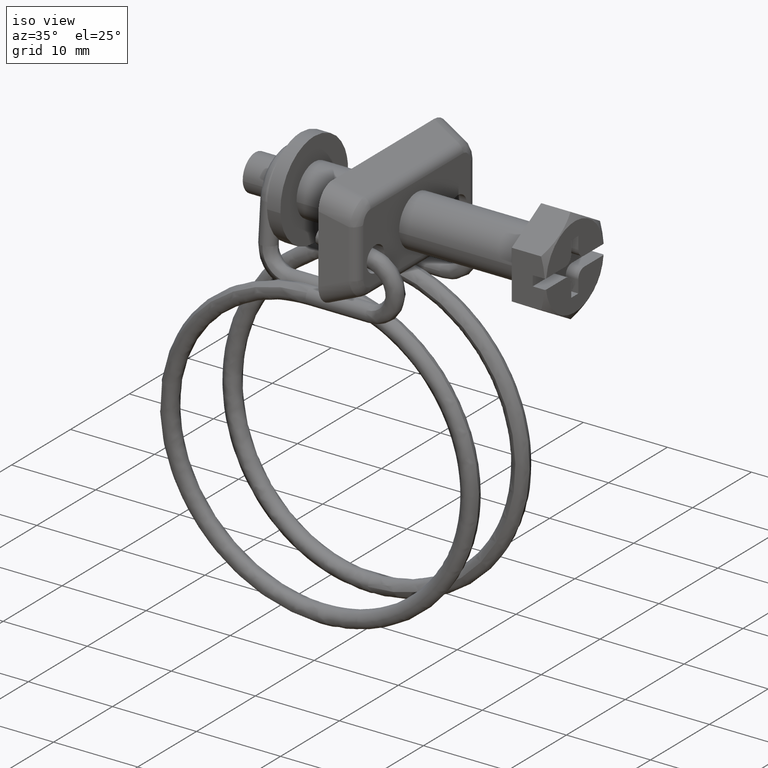
[diagram: clean part render]
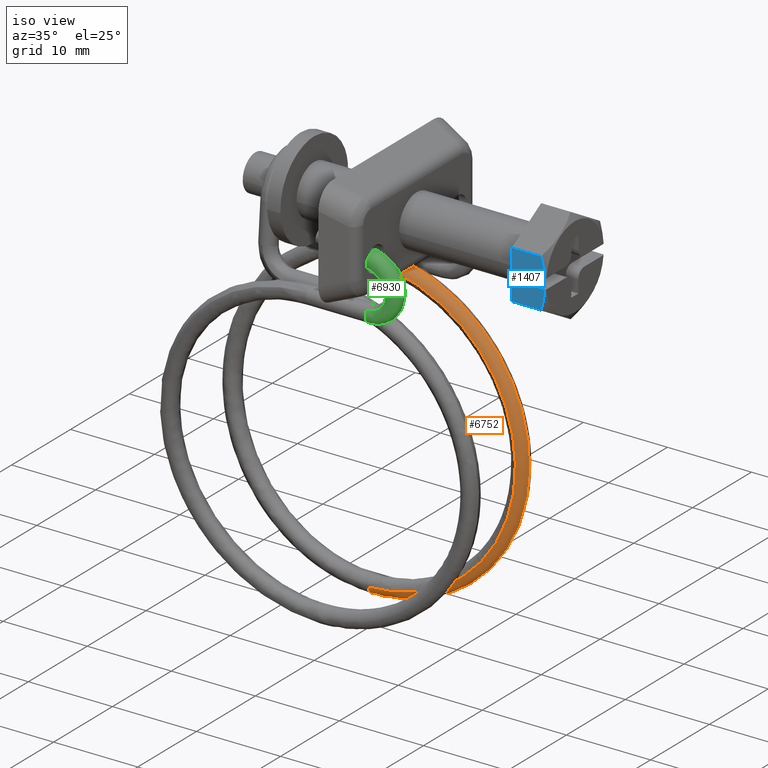
[diagram: same view with three faces highlighted in distinct colors, each labeled with its STEP entity id]
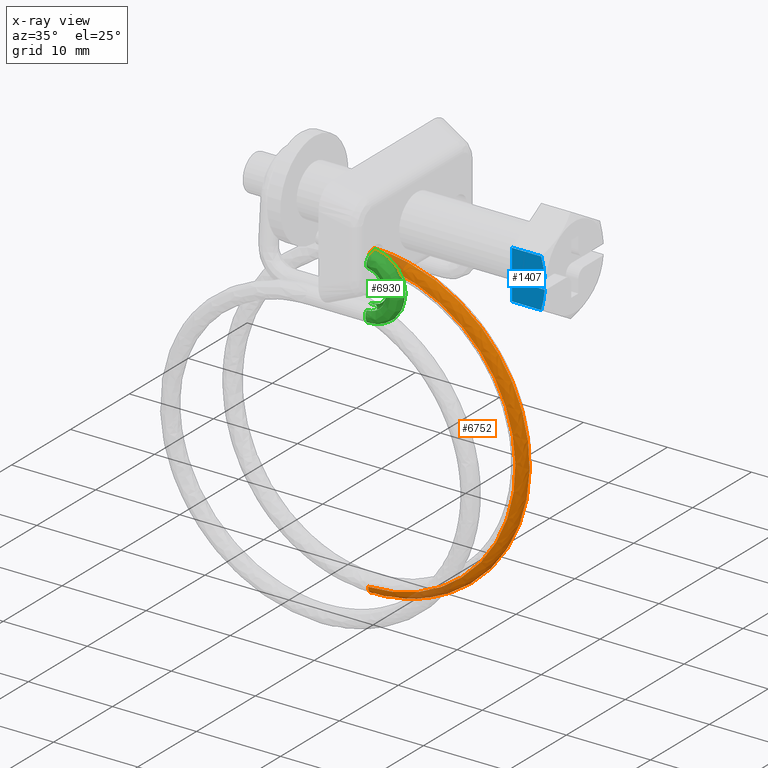
[diagram: x-ray of the same camera — body ghosted, the three highlighted faces saturated]
A machine part, iso view with three faces highlighted in distinct colors.
The next image is the same camera in x-ray (body ghosted, the three faces saturated) — at least one of them is partly hidden behind the body in this view.
Their STEP definitions:

[orange] entity #6752 — the highlighted face is a freeform B-spline surface patch.
#5493=CARTESIAN_POINT('',(-22.899997379453179,3.300317815066747,-7.824870731451295));
#5494=VERTEX_POINT('',#5493);
#5510=CARTESIAN_POINT('',(-22.900002933982648,4.325130255413341,-6.850316764466404));
#5511=VERTEX_POINT('',#5510);
#5512=CARTESIAN_POINT('',(-22.899997379453179,3.300317815066747,-7.824870731451295));
#5513=CARTESIAN_POINT('',(-22.899998110348751,3.306964750258441,-7.560455093532802));
#5514=CARTESIAN_POINT('',(-22.899999145351160,3.423510355203599,-7.299474493825690));
#5515=CARTESIAN_POINT('',(-22.900000184284391,3.619090430483517,-7.117635357371355));
#5516=CARTESIAN_POINT('',(-22.900001192719671,3.808929238325037,-6.941134122089506));
#5517=CARTESIAN_POINT('',(-22.900002196482081,4.067988789246369,-6.843853208072574));
#5518=CARTESIAN_POINT('',(-22.900002933982648,4.325130255413341,-6.850316764466404));
#5519=B_SPLINE_CURVE_WITH_KNOTS('',3,(#5512,#5513,#5514,#5515,#5516,#5517,#5518),.UNSPECIFIED.,.F.,.U.,(4,3,4),(0.0,0.793497512229485,1.563701846854389),.UNSPECIFIED.);
#5520=EDGE_CURVE('',#5494,#5511,#5519,.T.);
#6622=CARTESIAN_POINT('',(-22.899890940457698,4.325131802862888,-43.849677998842559));
#6623=VERTEX_POINT('',#6622);
#6624=CARTESIAN_POINT('',(-22.899890940457698,4.325131802862888,-43.849677998842559));
#6625=CARTESIAN_POINT('',(-4.516188428193275,4.325131802860684,-43.849569623004797));
#6626=CARTESIAN_POINT('',(-4.400680978665660,4.325131034001881,-25.466233538439941));
#6627=CARTESIAN_POINT('',(-4.283712143503053,4.325130255415576,-6.850313811980068));
#6628=CARTESIAN_POINT('',(-22.900002933982652,4.325130255413341,-6.850316764466404));
#6636=(BOUNDED_CURVE()B_SPLINE_CURVE(2,(#6624,#6625,#6626,#6627,#6628),.UNSPECIFIED.,.F.,.U.)B_SPLINE_CURVE_WITH_KNOTS((3,2,3),(-3.792507773493133,-2.0,-0.192000462142539),.UNSPECIFIED.)CURVE()GEOMETRIC_REPRESENTATION_ITEM()RATIONAL_B_SPLINE_CURVE((0.934809355846599,0.685816450809333,1.0,0.683101116692970,0.939155267952596))REPRESENTATION_ITEM(''));
#6637=EDGE_CURVE('',#6623,#5511,#6636,.T.);
#6663=CARTESIAN_POINT('',(-22.899999976841730,3.300325003407886,-42.875130913210207));
#6664=VERTEX_POINT('',#6663);
#6676=CARTESIAN_POINT('',(-22.899999976841734,3.300325003407886,-42.875130913210214));
#6677=CARTESIAN_POINT('',(-5.484639055501772,3.300325003407616,-42.875130890197006));
#6678=CARTESIAN_POINT('',(-5.375215838033415,3.300321431819741,-25.460113737706799));
#6679=CARTESIAN_POINT('',(-5.264408899137333,3.300317815067022,-7.824873373401323));
#6680=CARTESIAN_POINT('',(-22.899997379453179,3.300317815066747,-7.824870731451296));
#6688=(BOUNDED_CURVE()B_SPLINE_CURVE(2,(#6676,#6677,#6678,#6679,#6680),.UNSPECIFIED.,.F.,.U.)B_SPLINE_CURVE_WITH_KNOTS((3,2,3),(-3.792515019190120,-2.0,-0.192000843043612),.UNSPECIFIED.)CURVE()GEOMETRIC_REPRESENTATION_ITEM()RATIONAL_B_SPLINE_CURVE((0.934811368820172,0.685815180812723,1.0,0.683101183455778,0.939155160063986))REPRESENTATION_ITEM(''));
#6689=EDGE_CURVE('',#6664,#5494,#6688,.T.);
#6694=CARTESIAN_POINT('',(-25.522557849110598,4.339330253111255,-43.662491272337213));
#6695=CARTESIAN_POINT('',(-4.534255865263464,4.339330253111259,-46.668255932886396));
#6696=CARTESIAN_POINT('',(-4.401037885373745,4.339330253111258,-25.466234936537912));
#6697=CARTESIAN_POINT('',(-4.266214784775348,4.339330253111258,-4.008754406911026));
#6698=CARTESIAN_POINT('',(-25.509555637843516,4.339330253111256,-7.035653372541812));
#6699=CARTESIAN_POINT('',(-25.522570433841235,4.335798881114522,-43.662579147522692));
#6700=CARTESIAN_POINT('',(-4.534167734531473,4.335798881114524,-46.668358231676926));
#6701=CARTESIAN_POINT('',(-4.400949115375628,4.335798881114523,-25.466235494303586));
#6702=CARTESIAN_POINT('',(-4.266125367808699,4.335798881114525,-4.008651997791635));
#6703=CARTESIAN_POINT('',(-25.509568160181121,4.335798881114521,-7.035565488443539));
#6704=CARTESIAN_POINT('',(-25.522595732571283,4.328699863312645,-43.662755800536488));
#6705=CARTESIAN_POINT('',(-4.533990567799713,4.328699863312647,-46.668563880058237));
#6706=CARTESIAN_POINT('',(-4.400770663545159,4.328699863312647,-25.466236615564284));
#6707=CARTESIAN_POINT('',(-4.265945615395582,4.328699863312646,-4.008446127619270));
#6708=CARTESIAN_POINT('',(-25.509593333484222,4.328699863312645,-7.035388817512612));
#6709=CARTESIAN_POINT('',(-25.526171015961438,3.325447906157010,-43.687720871307121));
#6710=CARTESIAN_POINT('',(-4.508952897048200,3.325447906157009,-46.697626652799194));
#6711=CARTESIAN_POINT('',(-4.375551379247565,3.325447906157009,-25.466395075086076));
#6712=CARTESIAN_POINT('',(-4.240542529321286,3.325447906157008,-3.979352010783890));
#6713=CARTESIAN_POINT('',(-25.513150891206294,3.325447906157008,-7.010421214644954));
#6714=CARTESIAN_POINT('',(-25.383527453253379,3.300154090398354,-42.691686082069268));
#6715=CARTESIAN_POINT('',(-5.507884217496300,3.300154090398354,-45.538105296434473));
#6716=CARTESIAN_POINT('',(-5.381728559791635,3.300154090398355,-25.460072994213391));
#6717=CARTESIAN_POINT('',(-5.254052874093257,3.300154090398356,-5.140123906702971));
#6718=CARTESIAN_POINT('',(-25.371214531864151,3.300154090398354,-8.006557027298463));
#6719=CARTESIAN_POINT('',(-25.381849596593099,3.299856569806265,-42.679970140786928));
#6720=CARTESIAN_POINT('',(-5.519634229465673,3.299856569806267,-45.524466330934885));
#6721=CARTESIAN_POINT('',(-5.393563801787447,3.299856569806264,-25.459998630216166));
#6722=CARTESIAN_POINT('',(-5.265974373037562,3.299856569806266,-5.153777581777094));
#6723=CARTESIAN_POINT('',(-25.369544993741730,3.299856569806265,-8.018274156877054));
#6724=CARTESIAN_POINT('',(-25.381093447927515,3.299722488150772,-42.674690194307338));
#6725=CARTESIAN_POINT('',(-5.524929530358504,3.299722488150773,-45.518319747733493));
#6726=CARTESIAN_POINT('',(-5.398897512737756,3.299722488150771,-25.459965117080877));
#6727=CARTESIAN_POINT('',(-5.271346956841579,3.299722488150772,-5.159930794046058));
#6728=CARTESIAN_POINT('',(-25.368792593937087,3.299722488150771,-8.023554638878313));
#6736=(BOUNDED_SURFACE()B_SPLINE_SURFACE(2,2,((#6694,#6699,#6704,#6709,#6714,#6719,#6724),(#6695,#6700,#6705,#6710,#6715,#6720,#6725),(#6696,#6701,#6706,#6711,#6716,#6721,#6726),(#6697,#6702,#6707,#6712,#6717,#6722,#6727),(#6698,#6703,#6708,#6713,#6718,#6723,#6728)),.UNSPECIFIED.,.F.,.F.,.U.)B_SPLINE_SURFACE_WITH_KNOTS((3,2,3),(3,1,1,1,1,3),(0.0,33.642016532226073,67.548148392552363),(0.0,0.008363077713735,0.016737899161507,1.673592148653894,1.688898838907106,1.701621309872899),.UNSPECIFIED.)GEOMETRIC_REPRESENTATION_ITEM()RATIONAL_B_SPLINE_SURFACE(((0.996306099585201,0.994841828573241,0.991911230367386,0.700350307425629,0.993124914479617,0.998032472398770,1.000260019011797),(0.658164479722504,0.657197175428011,0.655261208515598,0.462654696084059,0.656062973929467,0.659304929695784,0.660776457430313),(1.005917740999959,1.004439343759216,1.001480473259236,0.707106781186548,1.002705866118892,1.007660768611125,1.009909804984465),(0.655434353048551,0.654471061221058,0.652543124877098,0.460735561938227,0.653341564494437,0.656570072330661,0.658035496033078),(1.001657710312500,1.000185574038591,0.997239234264153,0.704112205721390,0.998459437622746,1.003393356255354,1.005632868028842)))REPRESENTATION_ITEM('')SURFACE());
#6737=ORIENTED_EDGE('',*,*,#5520,.F.);
#6738=ORIENTED_EDGE('',*,*,#6689,.F.);
#6739=CARTESIAN_POINT('',(-22.899999976841730,3.300325003407886,-42.875130913210207));
#6740=CARTESIAN_POINT('',(-22.900128358343789,3.307730184982455,-43.161544057764758));
#6741=CARTESIAN_POINT('',(-22.900257681124131,3.440315293994021,-43.436478376485212));
#6742=CARTESIAN_POINT('',(-22.900384438951779,3.660930071291216,-43.619147971383910));
#6743=CARTESIAN_POINT('',(-22.900215336089609,3.852843306251362,-43.778052622668682));
#6744=CARTESIAN_POINT('',(-22.900061273746569,4.075450189350363,-43.849628279716050));
#6745=CARTESIAN_POINT('',(-22.899890940457698,4.325131802862888,-43.849677998842559));
#6746=B_SPLINE_CURVE_WITH_KNOTS('',3,(#6739,#6740,#6741,#6742,#6743,#6744,#6745),.UNSPECIFIED.,.F.,.U.,(4,3,4),(0.0,0.859526662254463,1.607230731607541),.UNSPECIFIED.);
#6747=EDGE_CURVE('',#6664,#6623,#6746,.T.);
#6748=ORIENTED_EDGE('',*,*,#6747,.T.);
#6749=ORIENTED_EDGE('',*,*,#6637,.T.);
#6750=EDGE_LOOP('',(#6737,#6738,#6748,#6749));
#6751=FACE_OUTER_BOUND('',#6750,.T.);
#6752=ADVANCED_FACE('',(#6751),#6736,.T.);

[blue] entity #1407 — the highlighted face is a freeform B-spline surface patch.
#667=CARTESIAN_POINT('',(2.500000000000000,-5.000000000000110,0.600000000000108));
#668=VERTEX_POINT('',#667);
#674=CARTESIAN_POINT('',(2.500000000000000,-5.000000000000110,-0.600000000000108));
#675=VERTEX_POINT('',#674);
#676=CARTESIAN_POINT('',(2.500000000000000,-5.000000000000110,-0.600000000000108));
#677=CARTESIAN_POINT('',(2.500000000000000,-5.000000000000110,0.600000000000108));
#678=QUASI_UNIFORM_CURVE('',1,(#676,#677),.UNSPECIFIED.,.F.,.U.);
#679=EDGE_CURVE('',#675,#668,#678,.T.);
#1060=CARTESIAN_POINT('',(3.921553382859560,-5.000000000000110,-0.600000000000108));
#1061=VERTEX_POINT('',#1060);
#1062=CARTESIAN_POINT('',(2.500000000000000,-5.000000000000110,-0.600000000000108));
#1063=CARTESIAN_POINT('',(3.921553382859560,-5.000000000000110,-0.600000000000108));
#1064=QUASI_UNIFORM_CURVE('',1,(#1062,#1063),.UNSPECIFIED.,.F.,.U.);
#1065=EDGE_CURVE('',#675,#1061,#1064,.T.);
#1091=CARTESIAN_POINT('',(3.921553382871895,-4.999999999978600,0.600000000000108));
#1092=VERTEX_POINT('',#1091);
#1093=CARTESIAN_POINT('',(3.921553382871895,-4.999999999978600,0.600000000000108));
#1094=CARTESIAN_POINT('',(2.500000000000000,-5.000000000000110,0.600000000000108));
#1095=QUASI_UNIFORM_CURVE('',1,(#1093,#1094),.UNSPECIFIED.,.F.,.U.);
#1096=EDGE_CURVE('',#1092,#668,#1095,.T.);
#1242=CARTESIAN_POINT('',(3.495681525698620,-5.000000000000110,-2.886751999999890));
#1243=VERTEX_POINT('',#1242);
#1244=CARTESIAN_POINT('',(3.921553382859560,-5.000000000000110,-0.600000000000108));
#1245=CARTESIAN_POINT('',(3.918597977682698,-5.000000000000110,-0.642986714361419));
#1246=CARTESIAN_POINT('',(3.915330836117613,-5.000000000000110,-0.685948138292096));
#1247=CARTESIAN_POINT('',(3.891560659500435,-5.000000000000110,-0.971354513281901));
#1248=CARTESIAN_POINT('',(3.861532423447545,-5.000000000000110,-1.213026707472463));
#1249=CARTESIAN_POINT('',(3.783840757566470,-5.000000000000110,-1.694940394588888));
#1250=CARTESIAN_POINT('',(3.736194218412856,-5.000000000000110,-1.935183257814947));
#1251=CARTESIAN_POINT('',(3.625826569846141,-5.000000000000109,-2.414446020288906));
#1252=CARTESIAN_POINT('',(3.563506953373525,-5.000000000000110,-2.651799015420626));
#1253=CARTESIAN_POINT('',(3.495681525698620,-5.000000000000110,-2.886751999999890));
#1254=B_SPLINE_CURVE_WITH_KNOTS('',3,(#1244,#1245,#1246,#1247,#1248,#1249,#1250,#1251,#1252,#1253),.UNSPECIFIED.,.F.,.U.,(4,2,2,2,4),(0.0,0.022134886933876,0.147134886933876,0.272134886933876,0.397134886933876),.UNSPECIFIED.);
#1255=EDGE_CURVE('',#1061,#1243,#1254,.T.);
#1321=CARTESIAN_POINT('',(0.0,-5.000000000000110,2.886751000000115));
#1322=VERTEX_POINT('',#1321);
#1351=CARTESIAN_POINT('',(0.0,-5.000000000000110,-2.886751999999890));
#1352=VERTEX_POINT('',#1351);
#1358=CARTESIAN_POINT('',(0.0,-5.000000000000110,-2.886751999999890));
#1359=CARTESIAN_POINT('',(0.0,-5.000000000000110,2.886751000000115));
#1360=QUASI_UNIFORM_CURVE('',1,(#1358,#1359),.UNSPECIFIED.,.F.,.U.);
#1361=EDGE_CURVE('',#1352,#1322,#1360,.T.);
#1372=CARTESIAN_POINT('',(-0.195881583873720,-5.000000000000110,3.175137388835422));
#1373=CARTESIAN_POINT('',(-0.195881583873720,-5.000000000000110,-3.175138182358640));
#1374=CARTESIAN_POINT('',(4.117435071929873,-5.000000000000110,3.175137388835422));
#1375=CARTESIAN_POINT('',(4.117435071929873,-5.000000000000110,-3.175138182358640));
#1376=B_SPLINE_SURFACE_WITH_KNOTS('',1,1,((#1372,#1374),(#1373,#1375)),.UNSPECIFIED.,.F.,.F.,.U.,(2,2),(2,2),(0.0,6.350275571194063),(0.0,4.313316655803593),.UNSPECIFIED.);
#1377=ORIENTED_EDGE('',*,*,#1096,.F.);
#1378=CARTESIAN_POINT('',(3.495681814373700,-5.000000000000110,2.886751000000115));
#1379=VERTEX_POINT('',#1378);
#1380=CARTESIAN_POINT('',(3.495681814373700,-5.000000000000110,2.886751000000115));
#1381=CARTESIAN_POINT('',(3.630398860770083,-4.999999999995639,2.420080120623296));
#1382=CARTESIAN_POINT('',(3.742562202042314,-4.999999999991151,1.947388155845735));
#1383=CARTESIAN_POINT('',(3.859920259265320,-4.999999999984383,1.224765092697002));
#1384=CARTESIAN_POINT('',(3.890514917825811,-4.999999999982122,0.981597229773779));
#1385=CARTESIAN_POINT('',(3.914983570445982,-4.999999999979434,0.690513594369012));
#1386=CARTESIAN_POINT('',(3.918443051141774,-4.999999999979017,0.645242634383172));
#1387=CARTESIAN_POINT('',(3.921553382871895,-4.999999999978600,0.600000000000108));
#1388=B_SPLINE_CURVE_WITH_KNOTS('',3,(#1380,#1381,#1382,#1383,#1384,#1385,#1386,#1387),.UNSPECIFIED.,.F.,.U.,(4,2,2,4),(0.601961911219362,0.851961911219362,0.976961911219362,1.0),.UNSPECIFIED.);
#1389=EDGE_CURVE('',#1379,#1092,#1388,.T.);
#1390=ORIENTED_EDGE('',*,*,#1389,.F.);
#1391=CARTESIAN_POINT('',(3.495681814373700,-5.000000000000110,2.886751000000115));
#1392=CARTESIAN_POINT('',(0.0,-5.000000000000110,2.886751000000115));
#1393=QUASI_UNIFORM_CURVE('',1,(#1391,#1392),.UNSPECIFIED.,.F.,.U.);
#1394=EDGE_CURVE('',#1379,#1322,#1393,.T.);
#1395=ORIENTED_EDGE('',*,*,#1394,.T.);
#1396=ORIENTED_EDGE('',*,*,#1361,.F.);
#1397=CARTESIAN_POINT('',(3.495681525698620,-5.000000000000110,-2.886751999999890));
#1398=CARTESIAN_POINT('',(0.0,-5.000000000000110,-2.886751999999890));
#1399=QUASI_UNIFORM_CURVE('',1,(#1397,#1398),.UNSPECIFIED.,.F.,.U.);
#1400=EDGE_CURVE('',#1243,#1352,#1399,.T.);
#1401=ORIENTED_EDGE('',*,*,#1400,.F.);
#1402=ORIENTED_EDGE('',*,*,#1255,.F.);
#1403=ORIENTED_EDGE('',*,*,#1065,.F.);
#1404=ORIENTED_EDGE('',*,*,#679,.T.);
#1405=EDGE_LOOP('',(#1377,#1390,#1395,#1396,#1401,#1402,#1403,#1404));
#1406=FACE_OUTER_BOUND('',#1405,.T.);
#1407=ADVANCED_FACE('',(#1406),#1376,.T.);

[green] entity #6930 — the highlighted face is a freeform B-spline surface patch.
#4581=CARTESIAN_POINT('',(-15.810165851317199,-6.067982360080608,-6.880227583447105));
#4582=VERTEX_POINT('',#4581);
#4583=CARTESIAN_POINT('',(-15.810165851317240,-6.424481486962346,-6.856575396511321));
#4584=VERTEX_POINT('',#4583);
#4585=CARTESIAN_POINT('',(-15.810165851317199,-6.067982360080608,-6.880227583447105));
#4586=CARTESIAN_POINT('',(-15.810165851317210,-6.184181279829681,-6.851286316830446));
#4587=CARTESIAN_POINT('',(-15.810165851317221,-6.305455613998436,-6.842709107354715));
#4588=CARTESIAN_POINT('',(-15.810165851317240,-6.424481486962346,-6.856575396511321));
#4589=B_SPLINE_CURVE_WITH_KNOTS('',3,(#4585,#4586,#4587,#4588),.UNSPECIFIED.,.F.,.U.,(4,4),(0.942811837304476,1.0),.UNSPECIFIED.);
#4590=EDGE_CURVE('',#4582,#4584,#4589,.T.);
#4643=CARTESIAN_POINT('',(-15.810165851628120,-5.311479364745564,-7.796383682759801));
#4644=VERTEX_POINT('',#4643);
#4650=CARTESIAN_POINT('',(-15.810165851317191,-6.195522397931227,-8.843426605598774));
#4651=VERTEX_POINT('',#4650);
#4652=CARTESIAN_POINT('',(-15.810165851317191,-6.195522397931227,-8.843426605598774));
#4653=CARTESIAN_POINT('',(-15.810165851360461,-5.935438773348567,-8.813455653195517));
#4654=CARTESIAN_POINT('',(-15.810165851420210,-5.689292420303680,-8.676604595804742));
#4655=CARTESIAN_POINT('',(-15.810165851534340,-5.376516457382770,-8.282370011074230));
#4656=CARTESIAN_POINT('',(-15.810165851588151,-5.299114062947120,-8.037340927850183));
#4657=CARTESIAN_POINT('',(-15.810165851628120,-5.311479364745564,-7.796383682759801));
#4658=B_SPLINE_CURVE_WITH_KNOTS('',3,(#4652,#4653,#4654,#4655,#4656,#4657),.UNSPECIFIED.,.F.,.U.,(4,2,4),(0.500000000000000,0.625000000000000,0.740274519047409),.UNSPECIFIED.);
#4659=EDGE_CURVE('',#4651,#4644,#4658,.T.);
#4661=CARTESIAN_POINT('',(-15.810165851317240,-7.112523029409116,-7.253414382152814));
#4662=VERTEX_POINT('',#4661);
#4663=CARTESIAN_POINT('',(-15.810165851317240,-7.112523029409116,-7.253414382152814));
#4664=CARTESIAN_POINT('',(-15.810165851317191,-7.262130495784210,-7.455235911362829));
#4665=CARTESIAN_POINT('',(-15.810165851317191,-7.332199389705785,-7.714805511467455));
#4666=CARTESIAN_POINT('',(-15.810165851317191,-7.273456873465819,-8.224558760006779));
#4667=CARTESIAN_POINT('',(-15.810165851317191,-7.136606199616760,-8.470697642234583));
#4668=CARTESIAN_POINT('',(-15.810165851317191,-6.726415125526605,-8.796118847051970));
#4669=CARTESIAN_POINT('',(-15.810165851317191,-6.455600613301034,-8.873397280300306));
#4670=CARTESIAN_POINT('',(-15.810165851317191,-6.195522397931227,-8.843426605598774));
#4671=B_SPLINE_CURVE_WITH_KNOTS('',3,(#4663,#4664,#4665,#4666,#4667,#4668,#4669,#4670),.UNSPECIFIED.,.F.,.U.,(4,2,2,4),(0.130000025754511,0.250000000000000,0.375000000000000,0.500000000000000),.UNSPECIFIED.);
#4672=EDGE_CURVE('',#4662,#4651,#4671,.T.);
#4700=CARTESIAN_POINT('',(-15.810165851628120,-5.311479364745564,-7.796383682759801));
#4701=CARTESIAN_POINT('',(-15.810165851623839,-5.312521942232791,-7.776048204640260));
#4702=CARTESIAN_POINT('',(-15.810165851619461,-5.314203444835885,-7.755741557953407));
#4703=CARTESIAN_POINT('',(-15.810165851557510,-5.346490308971480,-7.475335274932522));
#4704=CARTESIAN_POINT('',(-15.810165851485030,-5.483322678026756,-7.229087598772470));
#4705=CARTESIAN_POINT('',(-15.810165851381630,-5.799655347085825,-6.977952176199461));
#4706=CARTESIAN_POINT('',(-15.810165851347120,-5.930250999910936,-6.914773464817992));
#4707=CARTESIAN_POINT('',(-15.810165851317199,-6.067982360080608,-6.880227583447105));
#4708=B_SPLINE_CURVE_WITH_KNOTS('',3,(#4700,#4701,#4702,#4703,#4704,#4705,#4706,#4707),.UNSPECIFIED.,.F.,.U.,(4,2,2,4),(0.740274519047409,0.750000000000000,0.875000000000000,0.942811837304476),.UNSPECIFIED.);
#4709=EDGE_CURVE('',#4644,#4582,#4708,.T.);
#5876=CARTESIAN_POINT('',(-15.436266066383389,-6.473608071934329,-2.589945108683043));
#5877=VERTEX_POINT('',#5876);
#5878=CARTESIAN_POINT('',(-15.446223969584610,-6.819439928313093,-2.679120480279817));
#5879=VERTEX_POINT('',#5878);
#5880=CARTESIAN_POINT('',(-15.436266066383389,-6.473608071934329,-2.589945108683043));
#5881=CARTESIAN_POINT('',(-15.443198312161201,-6.582381352362656,-2.639544567077028));
#5882=CARTESIAN_POINT('',(-15.446678064773341,-6.699928093713684,-2.670394052144686));
#5883=CARTESIAN_POINT('',(-15.446223969584610,-6.819439928313093,-2.679120480279817));
#5884=B_SPLINE_CURVE_WITH_KNOTS('',3,(#5880,#5881,#5882,#5883),.UNSPECIFIED.,.F.,.U.,(4,4),(0.942811831421926,1.0),.UNSPECIFIED.);
#5885=EDGE_CURVE('',#5877,#5879,#5884,.T.);
#5887=CARTESIAN_POINT('',(-15.388617693296540,-7.569187098825201,-2.423302125063336));
#5888=VERTEX_POINT('',#5887);
#5898=CARTESIAN_POINT('',(-15.097500008768611,-6.964019536060446,-0.715071515469158));
#5899=VERTEX_POINT('',#5898);
#5900=CARTESIAN_POINT('',(-15.388617693296540,-7.569187098825201,-2.423302125063336));
#5901=CARTESIAN_POINT('',(-15.356032968946041,-7.753698544545885,-2.255945953242370));
#5902=CARTESIAN_POINT('',(-15.312115483856751,-7.870809911009847,-2.017949707833397));
#5903=CARTESIAN_POINT('',(-15.222645451731340,-7.907903739288756,-1.514046717121525));
#5904=CARTESIAN_POINT('',(-15.177663208406530,-7.819236057281504,-1.250556496752302));
#5905=CARTESIAN_POINT('',(-15.114428609698971,-7.476779092533119,-0.859557403876561));
#5906=CARTESIAN_POINT('',(-15.096565642396870,-7.225098602493065,-0.734456238375776));
#5907=CARTESIAN_POINT('',(-15.097500008768611,-6.964019536060450,-0.715071515469158));
#5908=B_SPLINE_CURVE_WITH_KNOTS('',3,(#5900,#5901,#5902,#5903,#5904,#5905,#5906,#5907),.UNSPECIFIED.,.F.,.U.,(4,2,2,4),(0.130000023343268,0.250000000000000,0.375000000000000,0.500000000000000),.UNSPECIFIED.);
#5909=EDGE_CURVE('',#5888,#5899,#5908,.T.);
#5911=CARTESIAN_POINT('',(-15.264780604367999,-5.900792921860433,-1.563244412250211));
#5912=VERTEX_POINT('',#5911);
#5913=CARTESIAN_POINT('',(-15.097500008768611,-6.964019536060446,-0.715071515469158));
#5914=CARTESIAN_POINT('',(-15.098434334561849,-6.702935103874649,-0.695686055123983));
#5915=CARTESIAN_POINT('',(-15.118154471219700,-6.435665412688923,-0.782255492076043));
#5916=CARTESIAN_POINT('',(-15.181468991492050,-6.055069742069668,-1.105346664239391));
#5917=CARTESIAN_POINT('',(-15.222741498102600,-5.933458062813233,-1.327917000231272));
#5918=CARTESIAN_POINT('',(-15.264780604367999,-5.900792921860433,-1.563244412250211));
#5919=B_SPLINE_CURVE_WITH_KNOTS('',3,(#5913,#5914,#5915,#5916,#5917,#5918),.UNSPECIFIED.,.F.,.U.,(4,2,4),(0.500000000000000,0.625000000000000,0.740274513218299),.UNSPECIFIED.);
#5920=EDGE_CURVE('',#5899,#5912,#5919,.T.);
#5998=CARTESIAN_POINT('',(-15.264780604367999,-5.900792921860433,-1.563244412250211));
#5999=CARTESIAN_POINT('',(-15.268328461908020,-5.898035190980414,-1.583104592566339));
#6000=CARTESIAN_POINT('',(-15.271881801808309,-5.895910513511723,-1.603055717090305));
#6001=CARTESIAN_POINT('',(-15.321097259461180,-5.875479955448496,-1.880238983285426));
#6002=CARTESIAN_POINT('',(-15.366098091613299,-5.964109421145508,-2.143831013018982));
#6003=CARTESIAN_POINT('',(-15.414894121400470,-6.228173928572121,-2.445533236102255));
#6004=CARTESIAN_POINT('',(-15.428007282171549,-6.344723329571140,-2.530920895840112));
#6005=CARTESIAN_POINT('',(-15.436266066383389,-6.473608071934329,-2.589945108683043));
#6006=B_SPLINE_CURVE_WITH_KNOTS('',3,(#5998,#5999,#6000,#6001,#6002,#6003,#6004,#6005),.UNSPECIFIED.,.F.,.U.,(4,2,2,4),(0.740274513218299,0.750000000000000,0.875000000000000,0.942811831421926),.UNSPECIFIED.);
#6007=EDGE_CURVE('',#5912,#5877,#6006,.T.);
#6753=CARTESIAN_POINT('',(-15.845985592693619,-7.096251271049232,-7.231466546191244));
#6754=CARTESIAN_POINT('',(-15.848810995364550,-7.256908417307503,-7.436413332619529));
#6755=CARTESIAN_POINT('',(-15.852713940640839,-7.333242530449343,-7.705756858045422));
#6756=CARTESIAN_POINT('',(-15.860519553370160,-7.273709005814578,-8.224362647601303));
#6757=CARTESIAN_POINT('',(-15.868254694651061,-6.998492022395890,-8.717843708282466));
#6758=CARTESIAN_POINT('',(-15.871338487662349,-6.455347417358349,-8.873603300117235));
#6759=CARTESIAN_POINT('',(-15.871174891027859,-5.935443580309280,-8.813461519829012));
#6760=CARTESIAN_POINT('',(-15.869483741866320,-5.689304724053675,-8.676610615554662));
#6761=CARTESIAN_POINT('',(-15.863839100600529,-5.363846692028395,-8.266739107788519));
#6762=CARTESIAN_POINT('',(-15.855963123938690,-5.209511404793357,-7.723187262830220));
#6763=CARTESIAN_POINT('',(-15.848219090956791,-5.483434319371185,-7.228986803311528));
#6764=CARTESIAN_POINT('',(-15.842706723029440,-5.900725929535077,-6.898222524243868));
#6765=CARTESIAN_POINT('',(-15.841164222198090,-6.183329900815183,-6.821345195658556));
#6766=CARTESIAN_POINT('',(-15.841357702254800,-6.451633473575157,-6.859706369167520));
#6767=CARTESIAN_POINT('',(-15.236893885580010,-7.095390322822322,-7.240572736247706));
#6768=CARTESIAN_POINT('',(-15.191670373776820,-7.255979620156817,-7.446237156565076));
#6769=CARTESIAN_POINT('',(-15.129199670728450,-7.332220045266125,-7.716571614635788));
#6770=CARTESIAN_POINT('',(-15.004262711851551,-7.272499224614623,-8.237158423016824));
#6771=CARTESIAN_POINT('',(-14.880453722251071,-6.997096709644576,-8.732601840084302));
#6772=CARTESIAN_POINT('',(-14.831094404598939,-6.453878171393047,-8.889143419273941));
#6773=CARTESIAN_POINT('',(-14.833712939047100,-5.933978255396688,-8.828960166236044));
#6774=CARTESIAN_POINT('',(-14.860781542043210,-5.687879949421490,-8.691680363979152));
#6775=CARTESIAN_POINT('',(-14.951129902285571,-5.362557286621739,-8.280377063783387));
#6776=CARTESIAN_POINT('',(-15.077193108850480,-5.208410921267927,-7.734827003161840));
#6777=CARTESIAN_POINT('',(-15.201144420146010,-5.482519732319778,-7.238660327910919));
#6778=CARTESIAN_POINT('',(-15.289375608814391,-5.899943722729190,-6.906495871146130));
#6779=CARTESIAN_POINT('',(-15.314064940881099,-6.182584750454453,-6.829226598855084));
#6780=CARTESIAN_POINT('',(-15.310968091095390,-6.450883675043432,-6.867636935781494));
#6781=CARTESIAN_POINT('',(-14.630393866970071,-7.117298743874993,-7.008848518707686));
#6782=CARTESIAN_POINT('',(-14.537450221187759,-7.279619625704943,-7.196198060391691));
#6783=CARTESIAN_POINT('',(-14.409060034586920,-7.358251986411295,-7.441233140684961));
#6784=CARTESIAN_POINT('',(-14.152288791474639,-7.303314797472132,-7.911223726289265));
#6785=CARTESIAN_POINT('',(-13.897835748189239,-7.032652656802638,-8.356528451773258));
#6786=CARTESIAN_POINT('',(-13.796392151999070,-6.491323947083319,-8.493081413152112));
#6787=CARTESIAN_POINT('',(-13.801773781474591,-5.971323775889220,-8.433958554104622));
#6788=CARTESIAN_POINT('',(-13.857405352709200,-5.724189084670091,-8.307640544522954));
#6789=CARTESIAN_POINT('',(-14.043089894977291,-5.395407200961221,-7.932925243380629));
#6790=CARTESIAN_POINT('',(-14.302175818003100,-5.236434140673605,-7.438426883121805));
#6791=CARTESIAN_POINT('',(-14.556921341365101,-5.505796985226239,-6.992458047462238));
#6792=CARTESIAN_POINT('',(-14.738254634119331,-5.919842643368246,-6.696026034367875));
#6793=CARTESIAN_POINT('',(-14.788996302602870,-6.201538315408170,-6.628755739680303));
#6794=CARTESIAN_POINT('',(-14.782631637714820,-6.469955818597057,-6.665911876957214));
#6795=CARTESIAN_POINT('',(-13.742647373546230,-7.194282898283949,-6.194591116925627));
#6796=CARTESIAN_POINT('',(-13.580269823369330,-7.362624992771310,-6.318254605138641));
#6797=CARTESIAN_POINT('',(-13.355965259114150,-7.449574916340323,-6.475315255127514));
#6798=CARTESIAN_POINT('',(-12.907372081370990,-7.411272261651076,-6.769363236160562));
#6799=CARTESIAN_POINT('',(-12.462828923464381,-7.157094474183249,-7.040313814210745));
#6800=CARTESIAN_POINT('',(-12.285601502567321,-6.622337633471461,-7.107356458492108));
#6801=CARTESIAN_POINT('',(-12.295003498828761,-6.101988821602116,-7.051921153769873));
#6802=CARTESIAN_POINT('',(-12.392194847129479,-5.851250123695968,-6.963722535674243));
#6803=CARTESIAN_POINT('',(-12.716595733552900,-5.510438949478228,-6.716240415316292));
#6804=CARTESIAN_POINT('',(-13.169232781652630,-5.334681401926968,-6.399270704895780));
#6805=CARTESIAN_POINT('',(-13.614286917993880,-5.587540945400019,-6.127856427366073));
#6806=CARTESIAN_POINT('',(-13.931085937392490,-5.989839202110743,-5.955676068926711));
#6807=CARTESIAN_POINT('',(-14.019734362476720,-6.268247652372983,-5.923174548207718));
#6808=CARTESIAN_POINT('',(-14.008614950455980,-6.537077480691507,-5.955969544012551));
#6809=CARTESIAN_POINT('',(-13.460866444239009,-7.248346349914481,-5.622764797670496));
#6810=CARTESIAN_POINT('',(-13.276671792741190,-7.420890058373412,-5.701988033187845));
#6811=CARTESIAN_POINT('',(-13.022229593088090,-7.513643993581433,-5.797659953598920));
#6812=CARTESIAN_POINT('',(-12.513363287689630,-7.486948949432618,-5.968934840963503));
#6813=CARTESIAN_POINT('',(-12.009091164132370,-7.244273975876284,-6.118220753849752));
#6814=CARTESIAN_POINT('',(-11.808051408377199,-6.714102998217718,-6.136758962874934));
#6815=CARTESIAN_POINT('',(-11.818716659965000,-6.193510904201610,-6.083896840768810));
#6816=CARTESIAN_POINT('',(-11.928966669950199,-5.940257323379520,-6.022298008629210));
#6817=CARTESIAN_POINT('',(-12.296954166711931,-5.591052086711089,-5.863599450730501));
#6818=CARTESIAN_POINT('',(-12.810407678224840,-5.403582291110251,-5.670509579459969));
#6819=CARTESIAN_POINT('',(-13.315259435445441,-5.644925798806947,-5.520899814083639));
#6820=CARTESIAN_POINT('',(-13.674623675815290,-6.039026695817407,-5.435422503331433));
#6821=CARTESIAN_POINT('',(-13.775182932597950,-6.315141316292711,-5.427182701105449));
#6822=CARTESIAN_POINT('',(-13.762569512701610,-6.584258865892536,-5.456934483857054));
#6823=CARTESIAN_POINT('',(-13.357268404271540,-7.360856148004102,-4.432754508257227));
#6824=CARTESIAN_POINT('',(-13.165044879160270,-7.542119393518312,-4.419751653321059));
#6825=CARTESIAN_POINT('',(-12.899511780569730,-7.646918294041292,-4.388024601343931));
#6826=CARTESIAN_POINT('',(-12.368464466004751,-7.644312323980588,-4.304510603531327));
#6827=CARTESIAN_POINT('',(-11.842211589391709,-7.425508941873329,-4.201307933813812));
#6828=CARTESIAN_POINT('',(-11.632408697587961,-6.904854926762416,-4.119185724369709));
#6829=CARTESIAN_POINT('',(-11.643538837576161,-6.383757953502960,-4.071663683799311));
#6830=CARTESIAN_POINT('',(-11.758594543003440,-6.125285279511420,-4.065266928978701));
#6831=CARTESIAN_POINT('',(-12.142622272637521,-5.758659989719515,-4.090819367981498));
#6832=CARTESIAN_POINT('',(-12.678456745365020,-5.546883967614402,-4.154815191715213));
#6833=CARTESIAN_POINT('',(-13.205314521336630,-5.764328444752277,-4.257984230981792));
#6834=CARTESIAN_POINT('',(-13.580343114848780,-6.141417502466793,-4.352440260683785));
#6835=CARTESIAN_POINT('',(-13.685285656148480,-6.412771777520325,-4.394550384673467));
#6836=CARTESIAN_POINT('',(-13.672122429006270,-6.682486430138659,-4.417986639831407));
#6837=CARTESIAN_POINT('',(-13.536024010815320,-7.418722392551529,-3.820706245880199));
#6838=CARTESIAN_POINT('',(-13.357601331347770,-7.604469955265127,-3.760273000896904));
#6839=CARTESIAN_POINT('',(-13.111132399362120,-7.715463387077521,-3.663026713282436));
#6840=CARTESIAN_POINT('',(-12.618212062303980,-7.725246039088949,-3.448478903408335));
#6841=CARTESIAN_POINT('',(-12.129741942597709,-7.518719431243071,-3.215425430115308));
#6842=CARTESIAN_POINT('',(-11.935002021487740,-7.002959836394513,-3.081535191833681));
#6843=CARTESIAN_POINT('',(-11.945333063945890,-6.481603211886880,-3.036759469024769));
#6844=CARTESIAN_POINT('',(-12.052128250632460,-6.220446442499910,-3.058752251760302));
#6845=CARTESIAN_POINT('',(-12.408584394441760,-5.844862300497479,-3.179062005171106));
#6846=CARTESIAN_POINT('',(-12.905948191714200,-5.620585978335819,-3.375272853198275));
#6847=CARTESIAN_POINT('',(-13.394979781534460,-5.825739569721731,-3.608441952547738));
#6848=CARTESIAN_POINT('',(-13.743082889580290,-6.194079713009358,-3.795434795623963));
#6849=CARTESIAN_POINT('',(-13.840490995053930,-6.462985819231949,-3.863439074159717));
#6850=CARTESIAN_POINT('',(-13.828272832601000,-6.733007552295883,-3.883627355390114));
#6851=CARTESIAN_POINT('',(-14.269562695975720,-7.509074150359192,-2.865060397405239));
#6852=CARTESIAN_POINT('',(-14.148343445205180,-7.701867599609865,-2.730103176553429));
#6853=CARTESIAN_POINT('',(-13.980893996719869,-7.822594054908873,-2.529911205159653));
#6854=CARTESIAN_POINT('',(-13.646007007432299,-7.851842061758699,-2.109479348406396));
#6855=CARTESIAN_POINT('',(-13.314143467931929,-7.664605070292939,-1.672400604774511));
#6856=CARTESIAN_POINT('',(-13.181838385403500,-7.156535727561199,-1.457170969369827));
#6857=CARTESIAN_POINT('',(-13.188857230936870,-6.634771131638392,-1.416710339019619));
#6858=CARTESIAN_POINT('',(-13.261413211794940,-6.369397035337356,-1.483309569429872));
#6859=CARTESIAN_POINT('',(-13.503587283018220,-5.979736490310854,-1.752504706348072));
#6860=CARTESIAN_POINT('',(-13.841493131345080,-5.735819341692546,-2.156455555457224));
#6861=CARTESIAN_POINT('',(-14.173738130120030,-5.921661144321419,-2.593884441214303));
#6862=CARTESIAN_POINT('',(-14.410237201171251,-6.276254744793760,-2.926273753512379));
#6863=CARTESIAN_POINT('',(-14.476415657854369,-6.541314218620299,-3.034963663060164));
#6864=CARTESIAN_POINT('',(-14.468114714818610,-6.811818445202539,-3.050048635415485));
#6865=CARTESIAN_POINT('',(-14.825387226667100,-7.540547925580918,-2.532163911973584));
#6866=CARTESIAN_POINT('',(-14.747745414342640,-7.735820048405762,-2.370989889503379));
#6867=CARTESIAN_POINT('',(-14.640492823932579,-7.859970485624069,-2.134582639234047));
#6868=CARTESIAN_POINT('',(-14.425995270060231,-7.896066212824419,-1.641722800058934));
#6869=CARTESIAN_POINT('',(-14.213434257783581,-7.715615118651799,-1.132869973296776));
#6870=CARTESIAN_POINT('',(-14.128691889538031,-7.210251130965549,-0.889025938120906));
#6871=CARTESIAN_POINT('',(-14.133187511180189,-6.688343014712877,-0.850083314843216));
#6872=CARTESIAN_POINT('',(-14.179660144967681,-6.421485304288376,-0.932374654763594));
#6873=CARTESIAN_POINT('',(-14.334774400071691,-6.026872819146693,-1.253946205010388));
#6874=CARTESIAN_POINT('',(-14.551205555129631,-5.776046220985245,-1.730977942994743));
#6875=CARTESIAN_POINT('',(-14.764010894846200,-5.955094326299028,-2.240263412299203));
#6876=CARTESIAN_POINT('',(-14.915490271039211,-6.304852028233482,-2.623801772207706));
#6877=CARTESIAN_POINT('',(-14.957878054175421,-6.568558294624404,-2.746804486519022));
#6878=CARTESIAN_POINT('',(-14.952561239750420,-6.839232257679462,-2.760094165015866));
#6879=CARTESIAN_POINT('',(-15.427472949523031,-7.549708051501748,-2.435277735985221));
#6880=CARTESIAN_POINT('',(-15.397310863256070,-7.745702507624056,-2.266463631750014));
#6881=CARTESIAN_POINT('',(-15.355645660093860,-7.870850759228553,-2.019502550549118));
#6882=CARTESIAN_POINT('',(-15.272318216669040,-7.908942044245975,-1.505535800032134));
#6883=CARTESIAN_POINT('',(-15.189743075810110,-7.730468491454667,-0.975766620807846));
#6884=CARTESIAN_POINT('',(-15.156822584325189,-7.225892896420680,-0.723583797506762));
#6885=CARTESIAN_POINT('',(-15.158569031552860,-6.703942955574366,-0.685083550786387));
#6886=CARTESIAN_POINT('',(-15.176622597631640,-6.436652891373936,-0.771947874133003));
#6887=CARTESIAN_POINT('',(-15.236880973932660,-6.040597315350644,-1.108782921675808));
#6888=CARTESIAN_POINT('',(-15.320959577640290,-5.787757170297894,-1.607111840509656));
#6889=CARTESIAN_POINT('',(-15.403629634179360,-5.964825461151724,-2.137337704526710));
#6890=CARTESIAN_POINT('',(-15.462475942317161,-6.313173888957529,-2.535781883671180));
#6891=CARTESIAN_POINT('',(-15.478942636400919,-6.576485804593101,-2.662955625419361));
#6892=CARTESIAN_POINT('',(-15.476877174369640,-6.847209232131653,-2.675722120646496));
#6893=B_SPLINE_SURFACE_WITH_KNOTS('',3,3,((#6753,#6767,#6781,#6795,#6809,#6823,#6837,#6851,#6865,#6879),(#6754,#6768,#6782,#6796,#6810,#6824,#6838,#6852,#6866,#6880),(#6755,#6769,#6783,#6797,#6811,#6825,#6839,#6853,#6867,#6881),(#6756,#6770,#6784,#6798,#6812,#6826,#6840,#6854,#6868,#6882),(#6757,#6771,#6785,#6799,#6813,#6827,#6841,#6855,#6869,#6883),(#6758,#6772,#6786,#6800,#6814,#6828,#6842,#6856,#6870,#6884),(#6759,#6773,#6787,#6801,#6815,#6829,#6843,#6857,#6871,#6885),(#6760,#6774,#6788,#6802,#6816,#6830,#6844,#6858,#6872,#6886),(#6761,#6775,#6789,#6803,#6817,#6831,#6845,#6859,#6873,#6887),(#6762,#6776,#6790,#6804,#6818,#6832,#6846,#6860,#6874,#6888),(#6763,#6777,#6791,#6805,#6819,#6833,#6847,#6861,#6875,#6889),(#6764,#6778,#6792,#6806,#6820,#6834,#6848,#6862,#6876,#6890),(#6765,#6779,#6793,#6807,#6821,#6835,#6849,#6863,#6877,#6891),(#6766,#6780,#6794,#6808,#6822,#6836,#6850,#6864,#6878,#6892)),.UNSPECIFIED.,.F.,.F.,.U.,(4,2,1,2,2,1,2,4),(4,2,2,2,4),(0.0,0.781781466106368,1.567646655685989,2.353511845265609,3.139377034845230,3.925242224424851,4.711107414004472,5.524320725381769),(0.0,3.097651561441419,6.134564843351956,9.171478125262111,12.269132736119589),.UNSPECIFIED.);
#6894=ORIENTED_EDGE('',*,*,#4672,.T.);
#6895=ORIENTED_EDGE('',*,*,#4659,.T.);
#6896=ORIENTED_EDGE('',*,*,#4709,.T.);
#6897=ORIENTED_EDGE('',*,*,#4590,.T.);
#6898=CARTESIAN_POINT('',(-15.810165851317240,-6.424481486962346,-6.856575396511321));
#6899=CARTESIAN_POINT('',(-15.290441211888631,-6.424484682332225,-6.856541586516551));
#6900=CARTESIAN_POINT('',(-14.775245328671531,-6.443463117388055,-6.655807677110026));
#6901=CARTESIAN_POINT('',(-14.009095717122131,-6.509902548472945,-5.953081266110676));
#6902=CARTESIAN_POINT('',(-13.763114875351160,-6.557071493627815,-5.454177783677890));
#6903=CARTESIAN_POINT('',(-13.672691563506600,-6.655273241109920,-4.415503002222859));
#6904=CARTESIAN_POINT('',(-13.828801105471610,-6.705781086193125,-3.881284148704388));
#6905=CARTESIAN_POINT('',(-14.462139931191491,-6.783790970699685,-3.056177652964285));
#6906=CARTESIAN_POINT('',(-14.933858445807800,-6.810898443803826,-2.769463318196333));
#6907=CARTESIAN_POINT('',(-15.446223969584610,-6.819439928313093,-2.679120480279817));
#6908=B_SPLINE_CURVE_WITH_KNOTS('',3,(#6898,#6899,#6900,#6901,#6902,#6903,#6904,#6905,#6906,#6907),.UNSPECIFIED.,.F.,.U.,(4,2,2,2,4),(0.968178583864577,0.976133937898433,0.984089291932289,0.992044645966144,1.0),.UNSPECIFIED.);
#6909=EDGE_CURVE('',#4584,#5879,#6908,.T.);
#6910=ORIENTED_EDGE('',*,*,#6909,.T.);
#6911=ORIENTED_EDGE('',*,*,#5885,.F.);
#6912=ORIENTED_EDGE('',*,*,#6007,.F.);
#6913=ORIENTED_EDGE('',*,*,#5920,.F.);
#6914=ORIENTED_EDGE('',*,*,#5909,.F.);
#6915=CARTESIAN_POINT('',(-15.810165851317240,-7.112523029409116,-7.253414382152814));
#6916=CARTESIAN_POINT('',(-15.208104884190799,-7.112527012305888,-7.253371602364998));
#6917=CARTESIAN_POINT('',(-14.611532520256100,-7.134517812637991,-7.020776062995291));
#6918=CARTESIAN_POINT('',(-13.725180630252510,-7.211381018486155,-6.207797927857120));
#6919=CARTESIAN_POINT('',(-13.441052863560770,-7.265896432387018,-5.631191227148968));
#6920=CARTESIAN_POINT('',(-13.336591168032120,-7.379344179811856,-4.431260296343678));
#6921=CARTESIAN_POINT('',(-13.516831313533549,-7.437692796648793,-3.814110007320810));
#6922=CARTESIAN_POINT('',(-14.249199270704120,-7.527900340264463,-2.859989504861902));
#6923=CARTESIAN_POINT('',(-14.795124271560820,-7.559293102641644,-2.527949888079046));
#6924=CARTESIAN_POINT('',(-15.388617693296540,-7.569187098825201,-2.423302125063336));
#6925=B_SPLINE_CURVE_WITH_KNOTS('',3,(#6915,#6916,#6917,#6918,#6919,#6920,#6921,#6922,#6923,#6924),.UNSPECIFIED.,.F.,.U.,(4,2,2,2,4),(0.968178583864577,0.976133937898433,0.984089291932289,0.992044645966144,1.0),.UNSPECIFIED.);
#6926=EDGE_CURVE('',#4662,#5888,#6925,.T.);
#6927=ORIENTED_EDGE('',*,*,#6926,.F.);
#6928=EDGE_LOOP('',(#6894,#6895,#6896,#6897,#6910,#6911,#6912,#6913,#6914,#6927));
#6929=FACE_OUTER_BOUND('',#6928,.T.);
#6930=ADVANCED_FACE('',(#6929),#6893,.T.);